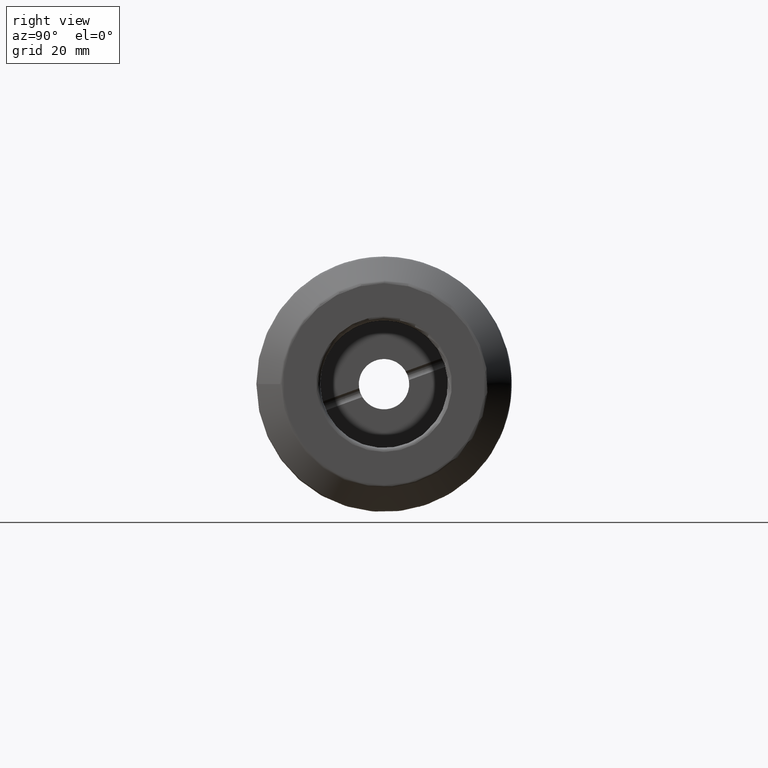
[diagram: clean part render]
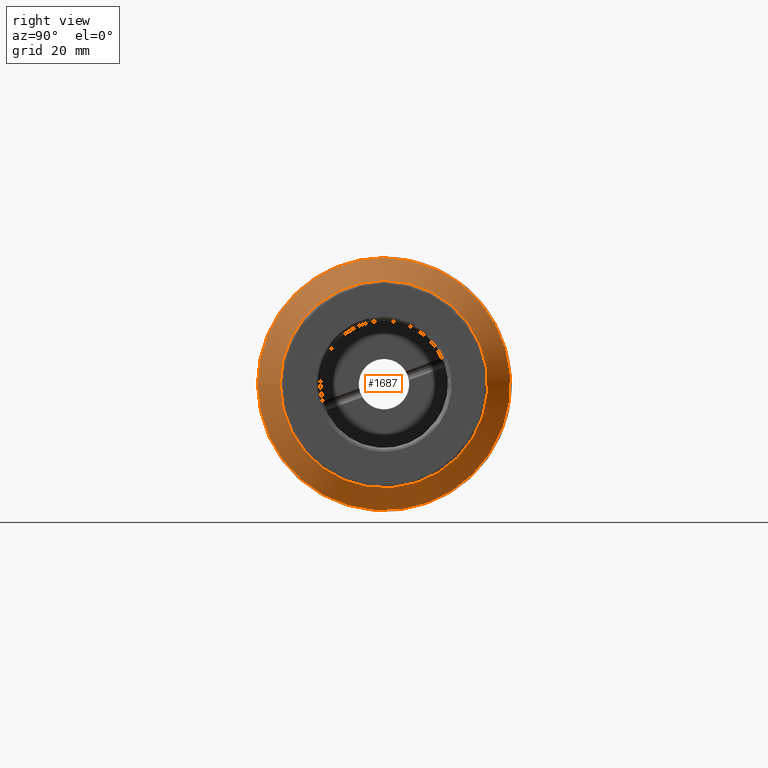
[diagram: same view with one face highlighted and labeled with its STEP entity id]
A machine part, right view. The second image highlights one B-rep face of the part: STEP entity #1687.
In plain terms, the highlighted conical surface has half-angle 45 deg.
Its self-contained STEP definition (entity closure, byte-faithful):
#71=CONICAL_SURFACE('',#1828,28.625,0.78539816339745);
#149=LINE('',#2824,#241);
#241=VECTOR('',#2105,28.625);
#377=FACE_OUTER_BOUND('',#478,.T.);
#478=EDGE_LOOP('',(#1209,#1210,#1211,#1212,#1213,#1214));
#589=CIRCLE('',#1826,25.7928932188134);
#590=CIRCLE('',#1827,25.7928932188134);
#591=CIRCLE('',#1829,31.4571067811865);
#592=CIRCLE('',#1830,31.4571067811865);
#719=VERTEX_POINT('',#2817);
#720=VERTEX_POINT('',#2819);
#721=VERTEX_POINT('',#2823);
#722=VERTEX_POINT('',#2825);
#908=EDGE_CURVE('',#719,#720,#589,.T.);
#909=EDGE_CURVE('',#720,#719,#590,.T.);
#910=EDGE_CURVE('',#720,#721,#149,.T.);
#911=EDGE_CURVE('',#722,#721,#591,.T.);
#912=EDGE_CURVE('',#721,#722,#592,.T.);
#1209=ORIENTED_EDGE('',*,*,#909,.F.);
#1210=ORIENTED_EDGE('',*,*,#910,.T.);
#1211=ORIENTED_EDGE('',*,*,#911,.F.);
#1212=ORIENTED_EDGE('',*,*,#912,.F.);
#1213=ORIENTED_EDGE('',*,*,#910,.F.);
#1214=ORIENTED_EDGE('',*,*,#908,.F.);
#1687=ADVANCED_FACE('',(#377),#71,.T.);
#1826=AXIS2_PLACEMENT_3D('',#2820,#2099,#2100);
#1827=AXIS2_PLACEMENT_3D('',#2821,#2101,#2102);
#1828=AXIS2_PLACEMENT_3D('',#2822,#2103,#2104);
#1829=AXIS2_PLACEMENT_3D('',#2826,#2106,#2107);
#1830=AXIS2_PLACEMENT_3D('',#2827,#2108,#2109);
#2099=DIRECTION('center_axis',(1.,0.,0.));
#2100=DIRECTION('ref_axis',(0.,-1.,3.06161699786838E-17));
#2101=DIRECTION('center_axis',(1.,0.,0.));
#2102=DIRECTION('ref_axis',(0.,-1.,3.06161699786838E-17));
#2103=DIRECTION('center_axis',(-1.,0.,0.));
#2104=DIRECTION('ref_axis',(0.,1.,0.));
#2105=DIRECTION('',(-0.707106781186546,-0.707106781186549,-8.65956056235495E-17));
#2106=DIRECTION('center_axis',(-1.,0.,0.));
#2107=DIRECTION('ref_axis',(0.,-1.,3.06161699786838E-17));
#2108=DIRECTION('center_axis',(-1.,0.,0.));
#2109=DIRECTION('ref_axis',(0.,-1.,3.06161699786838E-17));
#2817=CARTESIAN_POINT('',(89.7071067811866,-3.15871841211693E-15,25.7928932188134));
#2819=CARTESIAN_POINT('',(89.7071067811866,-25.7928932188134,-3.15871841211693E-15));
#2820=CARTESIAN_POINT('Origin',(89.7071067811866,0.,-3.94839801514617E-15));
#2821=CARTESIAN_POINT('Origin',(89.7071067811866,0.,-3.94839801514617E-15));
#2822=CARTESIAN_POINT('Origin',(86.875,0.,0.));
#2823=CARTESIAN_POINT('',(84.0428932188135,-31.4571067811865,-3.85238451300166E-15));
#2824=CARTESIAN_POINT('',(86.875,-28.625,-3.5055514625593E-15));
#2825=CARTESIAN_POINT('',(84.0428932188135,-3.85238451300166E-15,31.4571067811865));
#2826=CARTESIAN_POINT('Origin',(84.0428932188135,0.,-4.81548064125208E-15));
#2827=CARTESIAN_POINT('Origin',(84.0428932188135,0.,-4.81548064125208E-15));